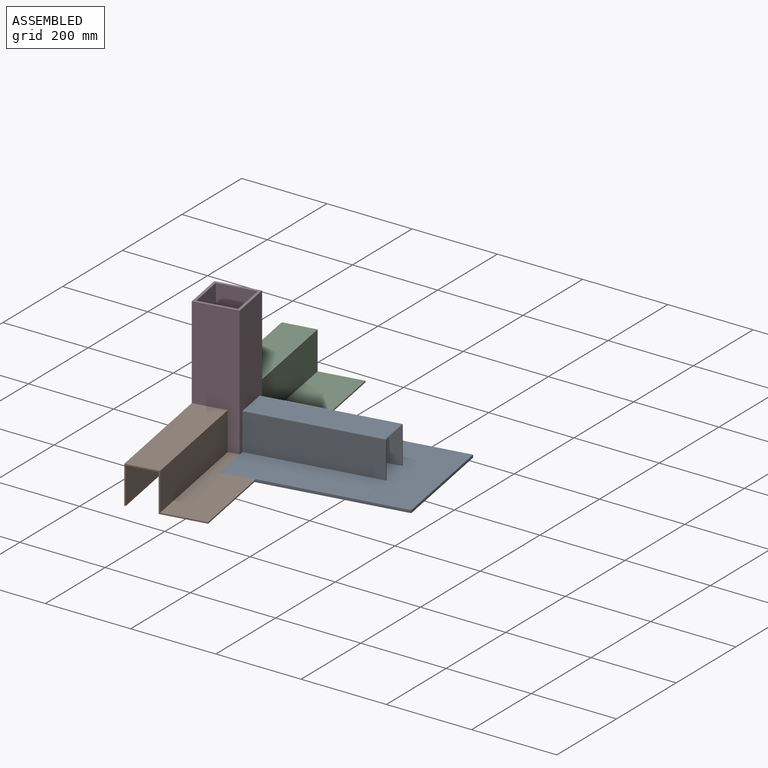
[diagram: assembled view]
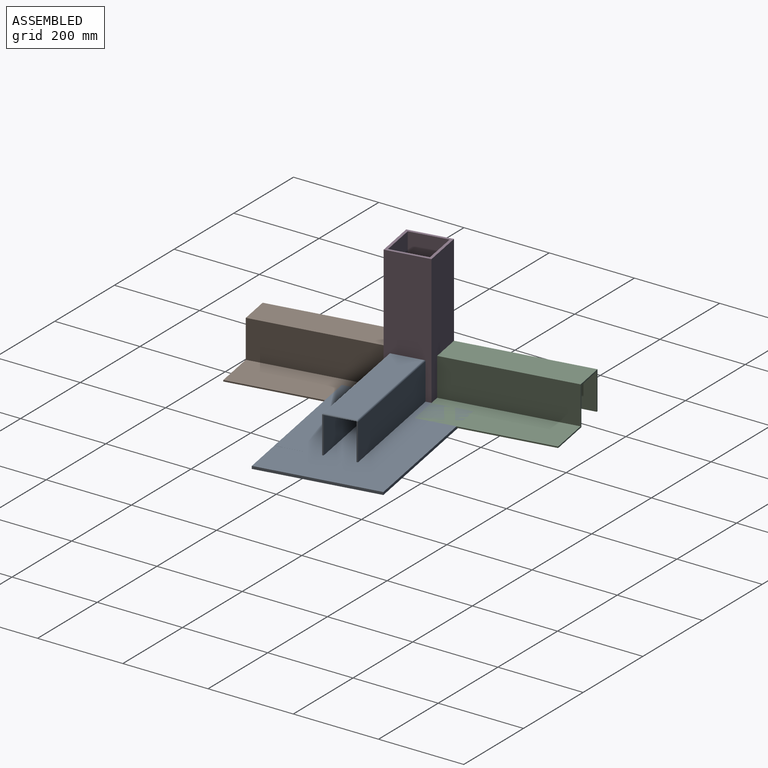
[diagram: assembled view, second angle]
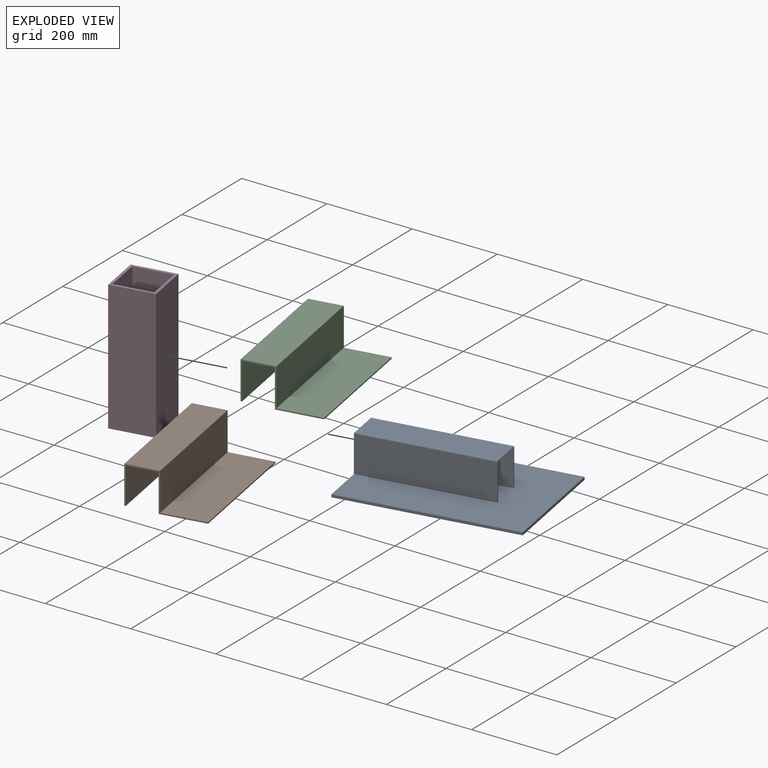
[diagram: exploded view]
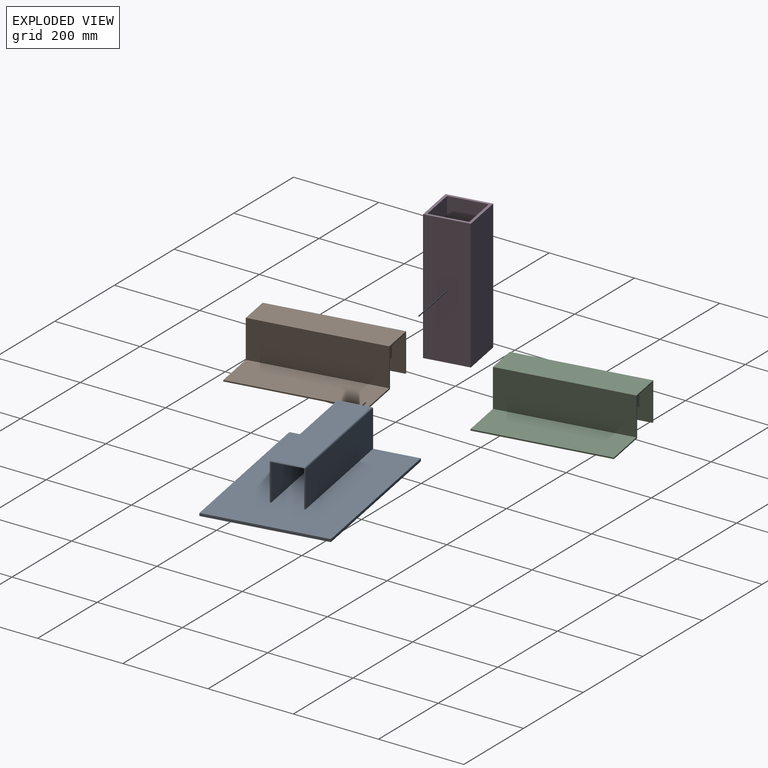
[diagram: exploded view, second angle]
ASSEMBLY  parts=4 mates=2
PART A: 21 faces, bbox 279.4x406.4x95.3 mm
  f0: plane 85.73x3.18mm, normal (0,1,0), area 272.2mm2, adj f7,f10,f11,f19
  f1: plane 85.73x3.18mm, normal (0,1,0), area 272.2mm2, adj f8,f10,f12,f19
  f2: plane 406.4x6.35mm, normal (-1,0,0), area 2580.6mm2, adj f3,f10,f15,f16
  f3: plane 279.4x92.08mm, normal (0,-1,0), area 2325.1mm2, adj f2,f4,f6,f7,f8,f10,f11,f12
  f4: plane 304.81x3.18mm, normal (1,0,0), area 967.7mm2, adj f3,f5,f6,f14
  f5: plane 101.6x0.13mm, normal (0,1,0), area 6.5mm2, adj f4,f6,f10
  f6: plane 304.8x101.6mm, normal (0,0,1), area 30967.7mm2, adj f3,f4,f5,f8
  f7: plane 304.8x85.73mm, normal (-1,0,0), area 26129mm2, adj f0,f3,f10,f17
  f8: plane 304.8x85.73mm, normal (1,0,0), area 26129mm2, adj f1,f3,f6,f20
  f9: plane 298.45x69.85mm, normal (0,0,1), area 20846.7mm2, adj f17,f18,f19,f20
  f10: plane 406.4x279.4mm, normal (0,0,1), area 80645mm2, adj f0,f1,f2,f3,f5,f7,f11,f12
  f11: plane 304.8x85.73mm, normal (1,0,0), area 26129mm2, adj f0,f3,f10,f13
  f12: plane 304.8x85.73mm, normal (-1,0,0), area 26129mm2, adj f1,f3,f10,f13
  f13: plane 304.8x69.85mm, normal (0,0,-1), area 21290.3mm2, adj f11,f12,f18,f19
  f14: plane 406.41x6.36mm, normal (1,0,0), area 1652.1mm2, adj f3,f4,f10,f15,f16
  f15: plane 406.4x279.4mm, normal (0,0,-1), area 113548.2mm2, adj f2,f3,f14,f16
  f16: plane 279.4x6.35mm, normal (0,1,0), area 1774.2mm2, adj f2,f10,f14,f15
  f17: cylinder r=3.17mm len=304.8mm, axis (0,1,0), area 1504.3mm2, adj f7,f9,f18,f19
  f18: cylinder r=3.17mm len=76.2mm, axis (1,0,0), area 364.2mm2, adj f3,f9,f13,f17,f20
  f19: cylinder r=3.17mm len=76.2mm, axis (-1,0,0), area 364.2mm2, adj f0,f1,f9,f13,f17,f20
  f20: cylinder r=3.17mm len=304.8mm, axis (0,1,0), area 1504.3mm2, adj f8,f9,f18,f19
PART B: 12 faces, bbox 177.8x92.1x304.8 mm
  f0: plane 177.8x92.08mm, normal (0,0,-1), area 1118.9mm2, adj f1,f3,f4,f5,f6,f7,f8,f9
  f1: plane 304.8x3.18mm, normal (-1,0,0), area 967.7mm2, adj f0,f2,f7,f11
  f2: plane 177.8x92.08mm, normal (0,0,1), area 1118.9mm2, adj f1,f3,f4,f5,f6,f7,f8,f9
  f3: plane 304.8x3.18mm, normal (0,-1,0), area 967.7mm2, adj f0,f2,f4,f8
  f4: plane 304.8x88.9mm, normal (1,0,0), area 27096.7mm2, adj f0,f2,f3,f5
  f5: plane 304.8x76.2mm, normal (0,1,0), area 23225.8mm2, adj f0,f2,f4,f6
  f6: plane 304.8x88.9mm, normal (-1,0,0), area 27096.7mm2, adj f0,f2,f5,f7
  f7: plane 304.8x101.6mm, normal (0,1,0), area 30967.7mm2, adj f0,f1,f2,f6
  f8: plane 304.8x85.73mm, normal (-1,0,0), area 26129mm2, adj f0,f2,f3,f9
  f9: plane 304.8x69.85mm, normal (0,-1,0), area 21290.3mm2, adj f0,f2,f8,f10
  f10: plane 304.8x88.9mm, normal (1,0,0), area 27096.7mm2, adj f0,f2,f9,f11
  f11: plane 304.8x104.78mm, normal (0,-1,0), area 31935.4mm2, adj f0,f1,f2,f10
PART C: same geometry as B
PART D: 10 faces, bbox 101.6x101.6x304.8 mm
  f0: plane 101.6x101.6mm, normal (0,0,1), area 2419.4mm2, adj f2,f3,f4,f5,f6,f7,f8,f9
  f1: plane 101.6x101.6mm, normal (0,0,-1), area 2419.4mm2, adj f2,f3,f4,f5,f6,f7,f8,f9
  f2: plane 304.8x88.9mm, normal (1,0,0), area 27096.7mm2, adj f0,f1,f3,f5
  f3: plane 304.8x88.9mm, normal (0,-1,0), area 27096.7mm2, adj f0,f1,f2,f4
  f4: plane 304.8x88.9mm, normal (-1,0,0), area 27096.7mm2, adj f0,f1,f3,f5
  f5: plane 304.8x88.9mm, normal (0,1,0), area 27096.7mm2, adj f0,f1,f2,f4
  f6: plane 304.8x101.6mm, normal (-1,0,0), area 30967.7mm2, adj f0,f1,f7,f9
  f7: plane 304.8x101.6mm, normal (0,1,0), area 30967.7mm2, adj f0,f1,f6,f8
  f8: plane 304.8x101.6mm, normal (1,0,0), area 30967.7mm2, adj f0,f1,f7,f9
  f9: plane 304.8x101.6mm, normal (0,-1,0), area 30967.7mm2, adj f0,f1,f6,f8
PLACE A rot(axis=(0,0,-1),80.2deg) t=(510.67,519.77,-907.62)mm
PLACE B rot(axis=(0.06,-0.71,-0.71),173.1deg) t=(532.46,20.89,-872.04)mm
PLACE C rot(axis=(0.06,-0.71,-0.71),173.1deg) t=(463.24,421.35,-872.04)mm
PLACE D rot(axis=(0,0,-1),80.2deg) t=(250.18,735.91,-907.62)mm
MATE fastened A.f3 <-> D.f7  axis (0.99,0.17,0) through (534.47,382.11,-907.62)mm
MATE fastened C.f0 <-> D.f6  axis (-0.17,0.99,0) through (425.7,414.86,-907.62)mm
